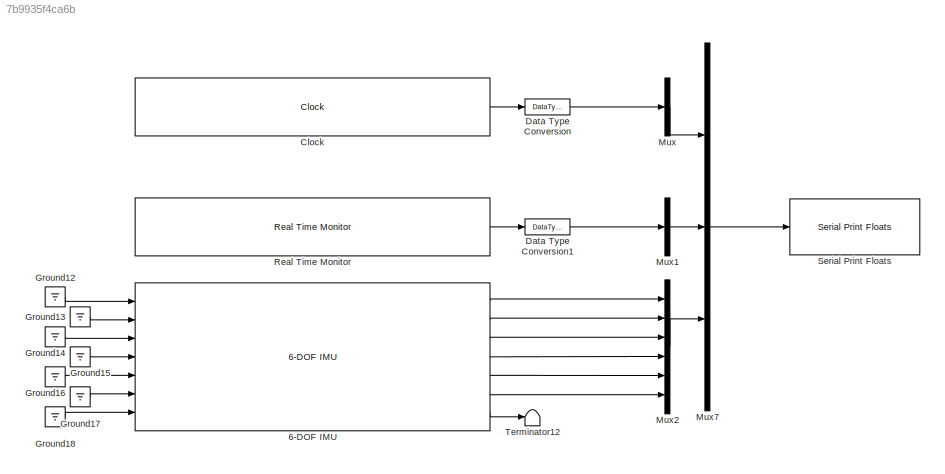
MODEL slx_7b9935f4ca6b
KIND model
CONFIG AbsTol = auto
CONFIG EnableMultiTasking = on
CONFIG FixedStep = auto
CONFIG MaxStep = auto
CONFIG MinStep = auto
CONFIG RelTol = 1e-3
CONFIG SampleTimeConstraint = Unconstrained
CONFIG Solver = FixedStepDiscrete
CONFIG SolverName = FixedStepDiscrete
CONFIG StartTime = 0.0
CONFIG StopTime = 0
BLOCK [Reference] 6-DOF IMU  REF=IMU_Library/6-DOF IMU
  Ports = [7, 7]
  SourceBlock = IMU_Library/6-DOF IMU
  SourceType = ArduPilot Mega 2.0 IMU
BLOCK [Reference] Clock  REF=Timing_Library/Clock
  Ports = [0, 1]
  SourceBlock = Timing_Library/Clock
  SourceType = ArduPilot Mega 2.0 Clock
BLOCK [DataTypeConversion] Data Type Conversion
  RndMeth = Floor
  SaturateOnIntegerOverflow = off
BLOCK [DataTypeConversion] Data Type Conversion1
  RndMeth = Floor
  SaturateOnIntegerOverflow = off
BLOCK [Ground] Ground12
BLOCK [Ground] Ground13
BLOCK [Ground] Ground14
BLOCK [Ground] Ground15
BLOCK [Ground] Ground16
BLOCK [Ground] Ground17
BLOCK [Ground] Ground18
BLOCK [Mux] Mux
  DisplayOption = bar
  Inputs = 1
  Ports = [1, 1]
BLOCK [Mux] Mux1
  DisplayOption = bar
  Inputs = 1
  Ports = [1, 1]
BLOCK [Mux] Mux2
  DisplayOption = bar
  Inputs = 6
  Ports = [6, 1]
BLOCK [Mux] Mux7
  DisplayOption = bar
  Inputs = 3
  Ports = [3, 1]
BLOCK [Reference] Real Time Monitor  REF=Timing_Library/Real Time Monitor
  Ports = [0, 1]
  SourceBlock = Timing_Library/Real Time Monitor
  SourceType = ArduPilot Mega 2.0 Real Time Monitor
BLOCK [Reference] Serial Print Floats  REF=Serial_Library/Serial Print Floats
  Ports = [1]
  SourceBlock = Serial_Library/Serial Print Floats
  SourceType = ArduPilot Mega 2.0 Serial Print Floats
BLOCK [Terminator] Terminator12
LINE 6-DOF IMU:1 -> Mux2:1
LINE 6-DOF IMU:2 -> Mux2:2
LINE 6-DOF IMU:3 -> Mux2:3
LINE 6-DOF IMU:4 -> Mux2:4
LINE 6-DOF IMU:5 -> Mux2:5
LINE 6-DOF IMU:6 -> Mux2:6
LINE 6-DOF IMU:7 -> Terminator12:1
LINE Clock:1 -> Data Type Conversion:1
LINE Data Type Conversion1:1 -> Mux1:1
LINE Data Type Conversion:1 -> Mux:1
LINE Ground12:1 -> 6-DOF IMU:1
LINE Ground13:1 -> 6-DOF IMU:2
LINE Ground14:1 -> 6-DOF IMU:3
LINE Ground15:1 -> 6-DOF IMU:4
LINE Ground16:1 -> 6-DOF IMU:5
LINE Ground17:1 -> 6-DOF IMU:6
LINE Ground18:1 -> 6-DOF IMU:7
LINE Mux1:1 -> Mux7:2
LINE Mux2:1 -> Mux7:3
LINE Mux7:1 -> Serial Print Floats:1
LINE Mux:1 -> Mux7:1
LINE Real Time Monitor:1 -> Data Type Conversion1:1
